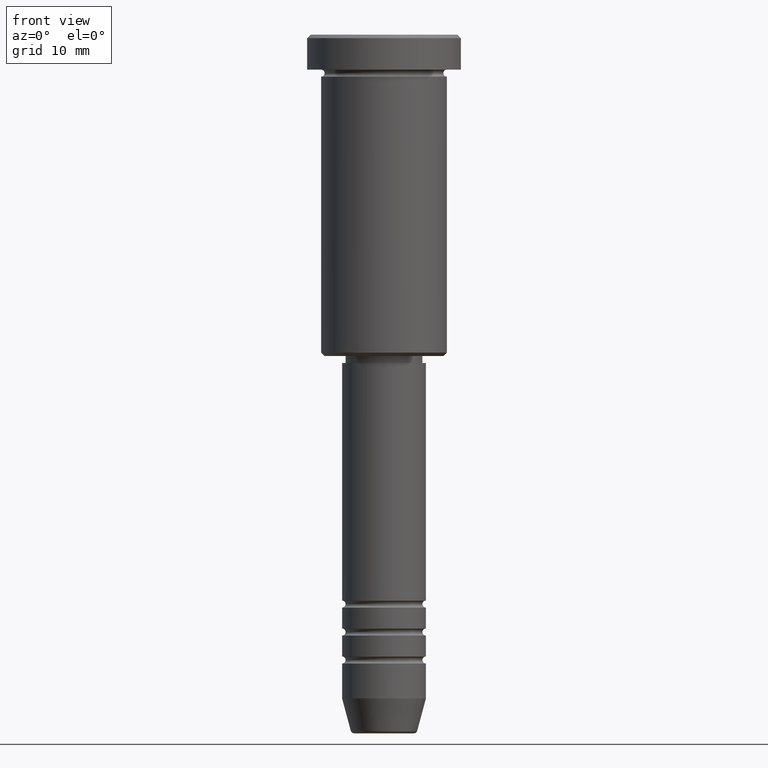
[diagram: clean part render]
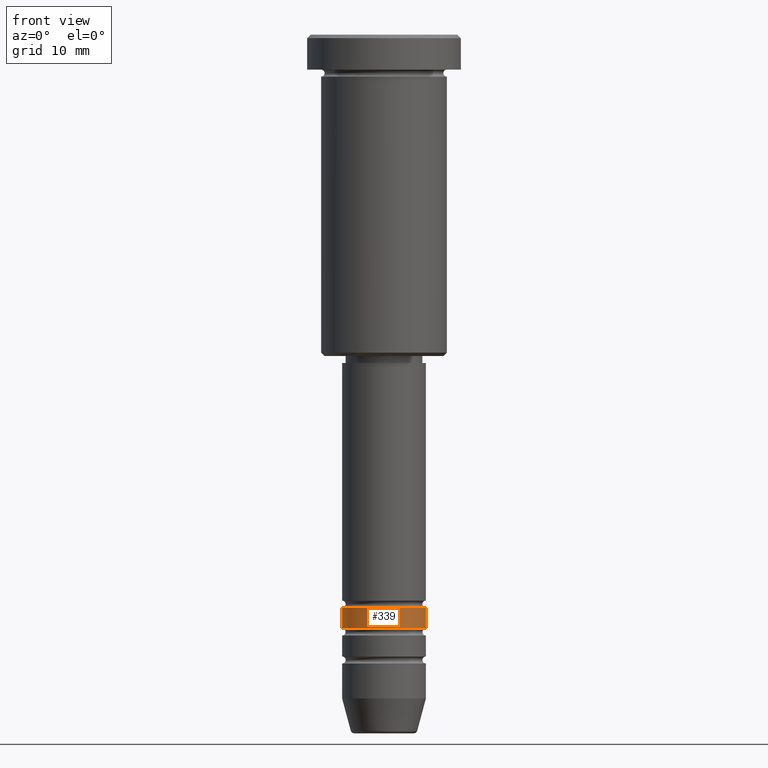
[diagram: same view with one face highlighted and labeled with its STEP entity id]
A machine part, front view. The second image highlights one B-rep face of the part: STEP entity #339.
In plain terms, the highlighted cylindrical surface (partial cylindrical patch) has radius 6 mm, axis along (-0, -0, 1).
Its self-contained STEP definition (entity closure, byte-faithful):
#54 = CIRCLE ( 'NONE', #846, 6.000000000000001776 ) ;
#81 = ORIENTED_EDGE ( 'NONE', *, *, #1037, .F. ) ;
#86 = LINE ( 'NONE', #448, #988 ) ;
#94 = CARTESIAN_POINT ( 'NONE',  ( 6.000000000000001776, 0.000000000000000000, -84.99999999999998579 ) ) ;
#102 = CARTESIAN_POINT ( 'NONE',  ( 0.000000000000000000, 0.000000000000000000, -81.99999999999998579 ) ) ;
#109 = CARTESIAN_POINT ( 'NONE',  ( 0.000000000000000000, 0.000000000000000000, 0.000000000000000000 ) ) ;
#118 = EDGE_CURVE ( 'NONE', #292, #186, #86, .T. ) ;
#127 = DIRECTION ( 'NONE',  ( -0.000000000000000000, -0.000000000000000000, 1.000000000000000000 ) ) ;
#144 = CARTESIAN_POINT ( 'NONE',  ( 6.000000000000000000, 0.000000000000000000, 0.000000000000000000 ) ) ;
#186 = VERTEX_POINT ( 'NONE', #1017 ) ;
#190 = CIRCLE ( 'NONE', #849, 5.999999999999999112 ) ;
#275 = DIRECTION ( 'NONE',  ( 1.000000000000000000, 0.000000000000000000, 0.000000000000000000 ) ) ;
#292 = VERTEX_POINT ( 'NONE', #579 ) ;
#329 = AXIS2_PLACEMENT_3D ( 'NONE', #109, #741, #275 ) ;
#334 = VERTEX_POINT ( 'NONE', #94 ) ;
#339 = ADVANCED_FACE ( 'NONE', ( #480 ), #808, .T. ) ;
#348 = CARTESIAN_POINT ( 'NONE',  ( 5.999999999999999112, 0.000000000000000000, -81.99999999999998579 ) ) ;
#404 = VECTOR ( 'NONE', #424, 1000.000000000000000 ) ;
#424 = DIRECTION ( 'NONE',  ( -0.000000000000000000, -0.000000000000000000, 1.000000000000000000 ) ) ;
#426 = EDGE_LOOP ( 'NONE', ( #614, #561, #648, #81 ) ) ;
#442 = VERTEX_POINT ( 'NONE', #348 ) ;
#448 = CARTESIAN_POINT ( 'NONE',  ( -6.000000000000000000, 7.347880794884119736E-16, 0.000000000000000000 ) ) ;
#480 = FACE_OUTER_BOUND ( 'NONE', #426, .T. ) ;
#491 = DIRECTION ( 'NONE',  ( 1.000000000000000000, 0.000000000000000000, 0.000000000000000000 ) ) ;
#505 = EDGE_CURVE ( 'NONE', #292, #334, #54, .T. ) ;
#522 = CARTESIAN_POINT ( 'NONE',  ( 0.000000000000000000, 0.000000000000000000, -84.99999999999998579 ) ) ;
#561 = ORIENTED_EDGE ( 'NONE', *, *, #505, .T. ) ;
#579 = CARTESIAN_POINT ( 'NONE',  ( -6.000000000000001776, 7.347880794884121708E-16, -84.99999999999998579 ) ) ;
#614 = ORIENTED_EDGE ( 'NONE', *, *, #118, .F. ) ;
#648 = ORIENTED_EDGE ( 'NONE', *, *, #731, .T. ) ;
#686 = LINE ( 'NONE', #144, #404 ) ;
#717 = DIRECTION ( 'NONE',  ( 1.000000000000000000, 0.000000000000000000, 0.000000000000000000 ) ) ;
#731 = EDGE_CURVE ( 'NONE', #334, #442, #686, .T. ) ;
#741 = DIRECTION ( 'NONE',  ( -0.000000000000000000, -0.000000000000000000, 1.000000000000000000 ) ) ;
#808 = CYLINDRICAL_SURFACE ( 'NONE', #329, 6.000000000000000000 ) ;
#846 = AXIS2_PLACEMENT_3D ( 'NONE', #522, #1153, #717 ) ;
#849 = AXIS2_PLACEMENT_3D ( 'NONE', #102, #127, #491 ) ;
#988 = VECTOR ( 'NONE', #1087, 1000.000000000000000 ) ;
#1017 = CARTESIAN_POINT ( 'NONE',  ( -5.999999999999999112, 7.347880794884118750E-16, -81.99999999999998579 ) ) ;
#1037 = EDGE_CURVE ( 'NONE', #186, #442, #190, .T. ) ;
#1087 = DIRECTION ( 'NONE',  ( -0.000000000000000000, -0.000000000000000000, 1.000000000000000000 ) ) ;
#1153 = DIRECTION ( 'NONE',  ( -0.000000000000000000, -0.000000000000000000, 1.000000000000000000 ) ) ;